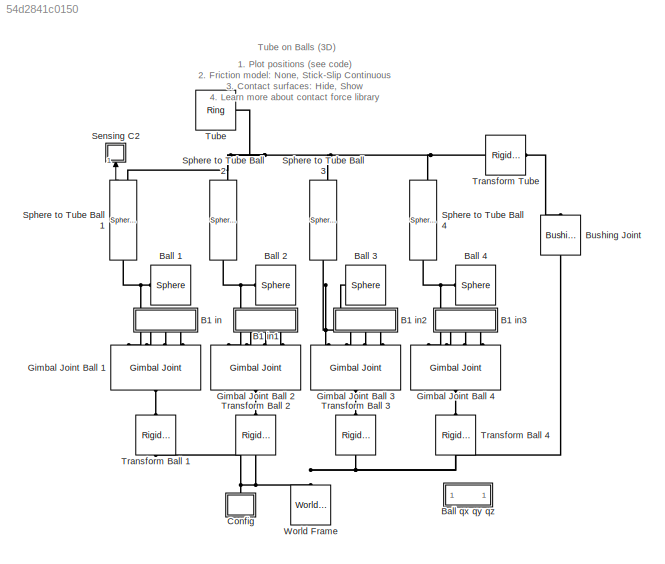
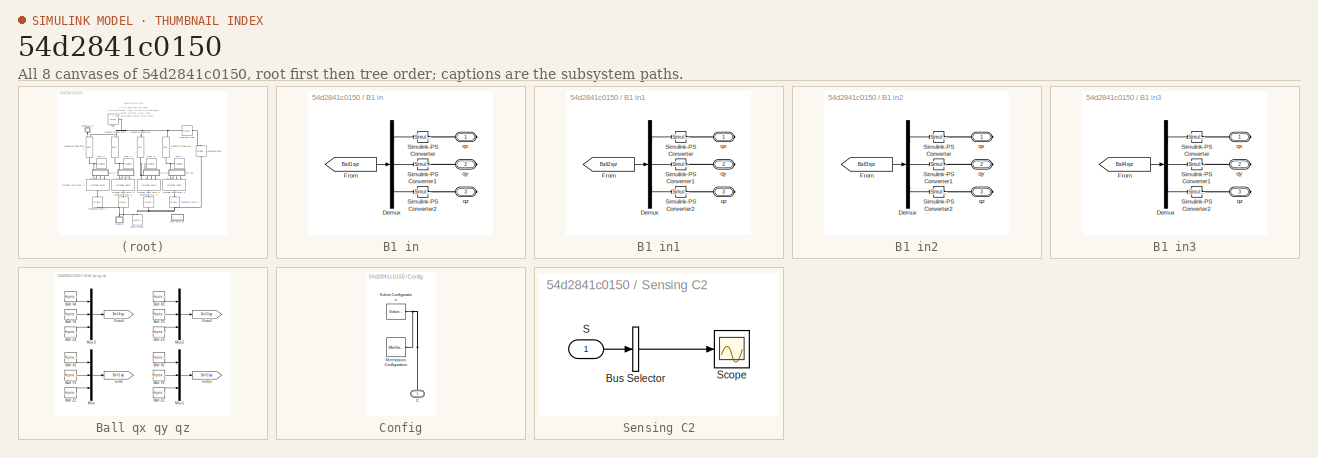
[diagram: thumbnail index - all 8 canvases of the model, root first then tree order]
MODEL slx_54d2841c0150
KIND model
CONFIG AbsTol = 1e-5
CONFIG EnableMultiTasking = on
CONFIG FixedStep = auto
CONFIG MaxStep = 1e-2
CONFIG MinStep = auto
CONFIG RelTol = 1e-4
CONFIG SampleTimeConstraint = Unconstrained
CONFIG Solver = ode23t
CONFIG SolverName = ode23t
CONFIG StartFcn = tic;
CONFIG StartTime = 0.0
CONFIG StopFcn = Elapsed_Sim_Time = toc;\ndisp(['Elapsed Sim Time = ' num2str(Elapsed_Sim_Time)]);\n
CONFIG StopTime = 36
WORKSPACE source: MATLAB code (in-file)
WORKSPACE code: ball.rad = 0.2;
WORKSPACE code: ball.spacing = 0.5;
WORKSPACE code: tube.radius = 0.5;
WORKSPACE code: tube.length = 3;
WORKSPACE code: tube.thickness=0.2*tube.radius;
WORKSPACE code: ballTube.friction.vel_thr = 0.01;
WORKSPACE code: ballTube.friction.mus = 0.7;
WORKSPACE code: ballTube.friction.muk = 0.6;
WORKSPACE code: ballInput.mag = 80;
WORKSPACE code: ballInput.filtconst = 0.4;
WORKSPACE code: ballInput.period = 2;
WORKSPACE code: ballInput.common.x = [0 1 0 -1 0 0 0  0 0];
WORKSPACE code: ballInput.common.y = [0 0 0  0 0 1 0 -1 0];
WORKSPACE code: ballInput.common.z = [0 0 0  0 0 0 0  0 0];
WORKSPACE code: ballInput.b1.x = [ballInput.common.x  0 0 0 0 1 2.5 2.5 0];
WORKSPACE code: ballInput.b1.y = [ballInput.common.y  0 0 0 0 0 0 0 0];
WORKSPACE code: ballInput.b2.x = [ballInput.common.x  0 0 0 0 1 2.5 2.5 0];
WORKSPACE code: ballInput.b2.y = [ballInput.common.y  0 0 0 0 0 0 0 0];
WORKSPACE code: ballInput.b3.x = [ballInput.common.x  0 0 0 0 1 2.5 2.5 0];
WORKSPACE code: ballInput.b3.y = [ballInput.common.y  0 0 0 0 0 0 0 0];
WORKSPACE code: ballInput.b4.x = [ballInput.common.x  0 0 0 0 1 2.5 2.5 0];
WORKSPACE code: ballInput.b4.y = [ballInput.common.y  0 0 0 0 0 0 0 0];
WORKSPACE code: ballInput.b1.z = [ballInput.common.z    1  0  -1 0 0 0 0 0];
WORKSPACE code: ballInput.b2.z = [ballInput.common.z   -1  0   1 0 0 0 0 0];
WORKSPACE code: ballInput.b3.z = [ballInput.common.z   -1  0   1 0 0 0 0 0];
WORKSPACE code: ballInput.b4.z = [ballInput.common.z    1  0  -1 0 0 0 0 0];
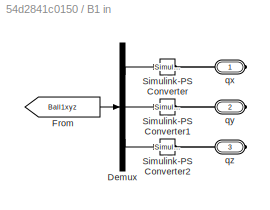
BLOCK [SubSystem] B1 in
  Ports = [0, 0, 0, 0, 0, 0, 3]
  RequestExecContextInheritance = off
BLOCK [Demux] B1 in/Demux
  DisplayOption = bar
  Outputs = 3
  Ports = [1, 3]
BLOCK [From] B1 in/From
  GotoTag = Ball1xyz
  TagVisibility = global
BLOCK [Reference] B1 in/Simulink-PS Converter  REF=nesl_utility/Simulink-PS
Converter
  Ports = [1, 0, 0, 0, 0, 0, 1]
  SourceBlock = nesl_utility/Simulink-PS\nConverter
  SourceProductBaseCode = SS
  SourceProductName = Simscape
  SourceType = Simulink-PS\nConverter
BLOCK [Reference] B1 in/Simulink-PS Converter1  REF=nesl_utility/Simulink-PS
Converter
  Ports = [1, 0, 0, 0, 0, 0, 1]
  SourceBlock = nesl_utility/Simulink-PS\nConverter
  SourceProductBaseCode = SS
  SourceProductName = Simscape
  SourceType = Simulink-PS\nConverter
BLOCK [Reference] B1 in/Simulink-PS Converter2  REF=nesl_utility/Simulink-PS
Converter
  Ports = [1, 0, 0, 0, 0, 0, 1]
  SourceBlock = nesl_utility/Simulink-PS\nConverter
  SourceProductBaseCode = SS
  SourceProductName = Simscape
  SourceType = Simulink-PS\nConverter
BLOCK [PMIOPort] B1 in/qx
  Side = Right
BLOCK [PMIOPort] B1 in/qy
  Port = 2
  Side = Right
BLOCK [PMIOPort] B1 in/qz
  Port = 3
  Side = Right
BLOCK [SubSystem] B1 in1
  Ports = [0, 0, 0, 0, 0, 0, 3]
  RequestExecContextInheritance = off
BLOCK [Demux] B1 in1/Demux
  DisplayOption = bar
  Outputs = 3
  Ports = [1, 3]
BLOCK [From] B1 in1/From
  GotoTag = Ball2xyz
  TagVisibility = global
BLOCK [Reference] B1 in1/Simulink-PS Converter  REF=nesl_utility/Simulink-PS
Converter
  Ports = [1, 0, 0, 0, 0, 0, 1]
  SourceBlock = nesl_utility/Simulink-PS\nConverter
  SourceProductBaseCode = SS
  SourceProductName = Simscape
  SourceType = Simulink-PS\nConverter
BLOCK [Reference] B1 in1/Simulink-PS Converter1  REF=nesl_utility/Simulink-PS
Converter
  Ports = [1, 0, 0, 0, 0, 0, 1]
  SourceBlock = nesl_utility/Simulink-PS\nConverter
  SourceProductBaseCode = SS
  SourceProductName = Simscape
  SourceType = Simulink-PS\nConverter
BLOCK [Reference] B1 in1/Simulink-PS Converter2  REF=nesl_utility/Simulink-PS
Converter
  Ports = [1, 0, 0, 0, 0, 0, 1]
  SourceBlock = nesl_utility/Simulink-PS\nConverter
  SourceProductBaseCode = SS
  SourceProductName = Simscape
  SourceType = Simulink-PS\nConverter
BLOCK [PMIOPort] B1 in1/qx
  Side = Right
BLOCK [PMIOPort] B1 in1/qy
  Port = 2
  Side = Right
BLOCK [PMIOPort] B1 in1/qz
  Port = 3
  Side = Right
BLOCK [SubSystem] B1 in2
  Ports = [0, 0, 0, 0, 0, 0, 3]
  RequestExecContextInheritance = off
BLOCK [Demux] B1 in2/Demux
  DisplayOption = bar
  Outputs = 3
  Ports = [1, 3]
BLOCK [From] B1 in2/From
  GotoTag = Ball3xyz
  TagVisibility = global
BLOCK [Reference] B1 in2/Simulink-PS Converter  REF=nesl_utility/Simulink-PS
Converter
  Ports = [1, 0, 0, 0, 0, 0, 1]
  SourceBlock = nesl_utility/Simulink-PS\nConverter
  SourceProductBaseCode = SS
  SourceProductName = Simscape
  SourceType = Simulink-PS\nConverter
BLOCK [Reference] B1 in2/Simulink-PS Converter1  REF=nesl_utility/Simulink-PS
Converter
  Ports = [1, 0, 0, 0, 0, 0, 1]
  SourceBlock = nesl_utility/Simulink-PS\nConverter
  SourceProductBaseCode = SS
  SourceProductName = Simscape
  SourceType = Simulink-PS\nConverter
BLOCK [Reference] B1 in2/Simulink-PS Converter2  REF=nesl_utility/Simulink-PS
Converter
  Ports = [1, 0, 0, 0, 0, 0, 1]
  SourceBlock = nesl_utility/Simulink-PS\nConverter
  SourceProductBaseCode = SS
  SourceProductName = Simscape
  SourceType = Simulink-PS\nConverter
BLOCK [PMIOPort] B1 in2/qx
  Side = Right
BLOCK [PMIOPort] B1 in2/qy
  Port = 2
  Side = Right
BLOCK [PMIOPort] B1 in2/qz
  Port = 3
  Side = Right
BLOCK [SubSystem] B1 in3
  Ports = [0, 0, 0, 0, 0, 0, 3]
  RequestExecContextInheritance = off
BLOCK [Demux] B1 in3/Demux
  DisplayOption = bar
  Outputs = 3
  Ports = [1, 3]
BLOCK [From] B1 in3/From
  GotoTag = Ball4xyz
  TagVisibility = global
BLOCK [Reference] B1 in3/Simulink-PS Converter  REF=nesl_utility/Simulink-PS
Converter
  Ports = [1, 0, 0, 0, 0, 0, 1]
  SourceBlock = nesl_utility/Simulink-PS\nConverter
  SourceProductBaseCode = SS
  SourceProductName = Simscape
  SourceType = Simulink-PS\nConverter
BLOCK [Reference] B1 in3/Simulink-PS Converter1  REF=nesl_utility/Simulink-PS
Converter
  Ports = [1, 0, 0, 0, 0, 0, 1]
  SourceBlock = nesl_utility/Simulink-PS\nConverter
  SourceProductBaseCode = SS
  SourceProductName = Simscape
  SourceType = Simulink-PS\nConverter
BLOCK [Reference] B1 in3/Simulink-PS Converter2  REF=nesl_utility/Simulink-PS
Converter
  Ports = [1, 0, 0, 0, 0, 0, 1]
  SourceBlock = nesl_utility/Simulink-PS\nConverter
  SourceProductBaseCode = SS
  SourceProductName = Simscape
  SourceType = Simulink-PS\nConverter
BLOCK [PMIOPort] B1 in3/qx
  Side = Right
BLOCK [PMIOPort] B1 in3/qy
  Port = 2
  Side = Right
BLOCK [PMIOPort] B1 in3/qz
  Port = 3
  Side = Right
BLOCK [Reference] Ball 1  REF=Parts_Lib/Sphere
  Ports = [0, 0, 0, 0, 0, 1]
  SourceBlock = Parts_Lib/Sphere
  SourceType = Sphere with Markings
  Tag = CustomStyle
BLOCK [Reference] Ball 2  REF=Parts_Lib/Sphere
  Ports = [0, 0, 0, 0, 0, 1]
  SourceBlock = Parts_Lib/Sphere
  SourceType = Sphere with Markings
  Tag = CustomStyle
BLOCK [Reference] Ball 3  REF=Parts_Lib/Sphere
  Ports = [0, 0, 0, 0, 0, 1]
  SourceBlock = Parts_Lib/Sphere
  SourceType = Sphere with Markings
  Tag = CustomStyle
BLOCK [Reference] Ball 4  REF=Parts_Lib/Sphere
  Ports = [0, 0, 0, 0, 0, 1]
  SourceBlock = Parts_Lib/Sphere
  SourceType = Sphere with Markings
  Tag = CustomStyle
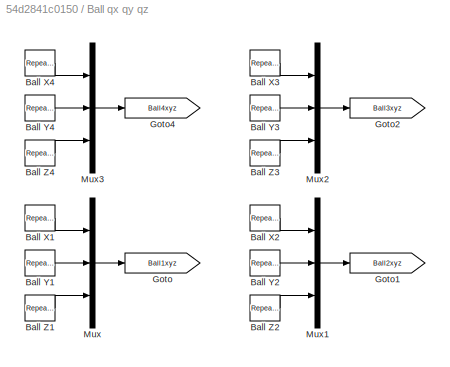
BLOCK [SubSystem] Ball qx qy qz
  Ports = []
  RequestExecContextInheritance = off
BLOCK [Reference] Ball qx qy qz/Ball X1  REF=simulink/Sources/Repeating
Sequence
Stair
  Ports = [0, 1]
  SourceBlock = simulink/Sources/Repeating\nSequence\nStair
  SourceProductBaseCode = SL
  SourceProductName = Simulink
  SourceType = Repeating Sequence Stair
BLOCK [Reference] Ball qx qy qz/Ball X2  REF=simulink/Sources/Repeating
Sequence
Stair
  Ports = [0, 1]
  SourceBlock = simulink/Sources/Repeating\nSequence\nStair
  SourceProductBaseCode = SL
  SourceProductName = Simulink
  SourceType = Repeating Sequence Stair
BLOCK [Reference] Ball qx qy qz/Ball X3  REF=simulink/Sources/Repeating
Sequence
Stair
  Ports = [0, 1]
  SourceBlock = simulink/Sources/Repeating\nSequence\nStair
  SourceProductBaseCode = SL
  SourceProductName = Simulink
  SourceType = Repeating Sequence Stair
BLOCK [Reference] Ball qx qy qz/Ball X4  REF=simulink/Sources/Repeating
Sequence
Stair
  Ports = [0, 1]
  SourceBlock = simulink/Sources/Repeating\nSequence\nStair
  SourceProductBaseCode = SL
  SourceProductName = Simulink
  SourceType = Repeating Sequence Stair
BLOCK [Reference] Ball qx qy qz/Ball Y1  REF=simulink/Sources/Repeating
Sequence
Stair
  Ports = [0, 1]
  SourceBlock = simulink/Sources/Repeating\nSequence\nStair
  SourceProductBaseCode = SL
  SourceProductName = Simulink
  SourceType = Repeating Sequence Stair
BLOCK [Reference] Ball qx qy qz/Ball Y2  REF=simulink/Sources/Repeating
Sequence
Stair
  Ports = [0, 1]
  SourceBlock = simulink/Sources/Repeating\nSequence\nStair
  SourceProductBaseCode = SL
  SourceProductName = Simulink
  SourceType = Repeating Sequence Stair
BLOCK [Reference] Ball qx qy qz/Ball Y3  REF=simulink/Sources/Repeating
Sequence
Stair
  Ports = [0, 1]
  SourceBlock = simulink/Sources/Repeating\nSequence\nStair
  SourceProductBaseCode = SL
  SourceProductName = Simulink
  SourceType = Repeating Sequence Stair
BLOCK [Reference] Ball qx qy qz/Ball Y4  REF=simulink/Sources/Repeating
Sequence
Stair
  Ports = [0, 1]
  SourceBlock = simulink/Sources/Repeating\nSequence\nStair
  SourceProductBaseCode = SL
  SourceProductName = Simulink
  SourceType = Repeating Sequence Stair
BLOCK [Reference] Ball qx qy qz/Ball Z1  REF=simulink/Sources/Repeating
Sequence
Stair
  Ports = [0, 1]
  SourceBlock = simulink/Sources/Repeating\nSequence\nStair
  SourceProductBaseCode = SL
  SourceProductName = Simulink
  SourceType = Repeating Sequence Stair
BLOCK [Reference] Ball qx qy qz/Ball Z2  REF=simulink/Sources/Repeating
Sequence
Stair
  Ports = [0, 1]
  SourceBlock = simulink/Sources/Repeating\nSequence\nStair
  SourceProductBaseCode = SL
  SourceProductName = Simulink
  SourceType = Repeating Sequence Stair
BLOCK [Reference] Ball qx qy qz/Ball Z3  REF=simulink/Sources/Repeating
Sequence
Stair
  Ports = [0, 1]
  SourceBlock = simulink/Sources/Repeating\nSequence\nStair
  SourceProductBaseCode = SL
  SourceProductName = Simulink
  SourceType = Repeating Sequence Stair
BLOCK [Reference] Ball qx qy qz/Ball Z4  REF=simulink/Sources/Repeating
Sequence
Stair
  Ports = [0, 1]
  SourceBlock = simulink/Sources/Repeating\nSequence\nStair
  SourceProductBaseCode = SL
  SourceProductName = Simulink
  SourceType = Repeating Sequence Stair
BLOCK [Goto] Ball qx qy qz/Goto
  GotoTag = Ball1xyz
  TagVisibility = global
BLOCK [Goto] Ball qx qy qz/Goto1
  GotoTag = Ball2xyz
  TagVisibility = global
BLOCK [Goto] Ball qx qy qz/Goto2
  GotoTag = Ball3xyz
  TagVisibility = global
BLOCK [Goto] Ball qx qy qz/Goto4
  GotoTag = Ball4xyz
  TagVisibility = global
BLOCK [Mux] Ball qx qy qz/Mux
  DisplayOption = bar
  Inputs = 3
  Ports = [3, 1]
BLOCK [Mux] Ball qx qy qz/Mux1
  DisplayOption = bar
  Inputs = 3
  Ports = [3, 1]
BLOCK [Mux] Ball qx qy qz/Mux2
  DisplayOption = bar
  Inputs = 3
  Ports = [3, 1]
BLOCK [Mux] Ball qx qy qz/Mux3
  DisplayOption = bar
  Inputs = 3
  Ports = [3, 1]
BLOCK [Reference] Bushing Joint  REF=sm_lib/Joints/Bushing Joint
  Ports = [0, 0, 0, 0, 0, 1, 1]
  SourceBlock = sm_lib/Joints/Bushing Joint
  SourceProductBaseCode = MS
  SourceProductName = Simscape Multibody
  SourceType = Bushing Joint
BLOCK [SubSystem] Config
  Ports = [0, 0, 0, 0, 0, 1]
  RequestExecContextInheritance = off
BLOCK [PMIOPort] Config/C
  Side = Left
BLOCK [Reference] Config/Mechanism Configuration  REF=sm_lib/Utilities/Mechanism
Configuration
  Ports = [0, 0, 0, 0, 0, 0, 1]
  SourceBlock = sm_lib/Utilities/Mechanism\nConfiguration
  SourceProductBaseCode = MS
  SourceProductName = Simscape Multibody
  SourceType = Mechanism\nConfiguration
BLOCK [Reference] Config/Solver Configuration  REF=nesl_utility/Solver
Configuration
  Ports = [0, 0, 0, 0, 0, 0, 1]
  SourceBlock = nesl_utility/Solver\nConfiguration
  SourceProductBaseCode = SS
  SourceProductName = Simscape
  SourceType = Solver\nConfiguration
BLOCK [Reference] Gimbal Joint Ball 1  REF=sm_lib/Joints/Gimbal Joint
  Ports = [0, 0, 0, 0, 0, 4, 1]
  SourceBlock = sm_lib/Joints/Gimbal Joint
  SourceProductBaseCode = MS
  SourceProductName = Simscape Multibody
  SourceType = Gimbal Joint
BLOCK [Reference] Gimbal Joint Ball 2  REF=sm_lib/Joints/Gimbal Joint
  Ports = [0, 0, 0, 0, 0, 4, 1]
  SourceBlock = sm_lib/Joints/Gimbal Joint
  SourceProductBaseCode = MS
  SourceProductName = Simscape Multibody
  SourceType = Gimbal Joint
BLOCK [Reference] Gimbal Joint Ball 3  REF=sm_lib/Joints/Gimbal Joint
  Ports = [0, 0, 0, 0, 0, 4, 1]
  SourceBlock = sm_lib/Joints/Gimbal Joint
  SourceProductBaseCode = MS
  SourceProductName = Simscape Multibody
  SourceType = Gimbal Joint
BLOCK [Reference] Gimbal Joint Ball 4  REF=sm_lib/Joints/Gimbal Joint
  Ports = [0, 0, 0, 0, 0, 4, 1]
  SourceBlock = sm_lib/Joints/Gimbal Joint
  SourceProductBaseCode = MS
  SourceProductName = Simscape Multibody
  SourceType = Gimbal Joint
BLOCK [SubSystem] Sensing C2
  Ports = [1]
  RequestExecContextInheritance = off
BLOCK [BusSelector] Sensing C2/Bus Selector
  OutputAsBus = on
  OutputSignals = Normal Force,Friction Force
  Ports = [1, 1]
BLOCK [Inport] Sensing C2/S
  IconDisplay = Port number
BLOCK [Scope] Sensing C2/Scope
  Floating = off
  NumInputPorts = 1
  Ports = [1]
  ScopeSpecificationString = C++SS(StrPVP('Location','[756, 180, 1153, 689]'),StrPVP('Open','off'),StrPVP('ZoomMode','xonly'),MxPVP('AxesTitles',53,'struct(''axes1'',''%<SignalLabel>'')'),MxPVP('ScopeGraphics',56,'struct(''FigureColor'',''[0.5 0.5 0.5]'',''AxesColor'',''[0 0 0]'',''AxesTickColor'',''[1 1 1]'',''LineColors'',''[1 1 0;1 0 1;0 1 1;1 0 0;0 1 0;0 0 1]'',''LineStyles'',''-|-|-|-|-|-'',''LineWidths'',''[0.5 0.5 0.5 ...<+261ch>
BLOCK [Reference] Sphere to Tube Ball 1  REF=Contact_Forces_Lib/3D/Sphere to Tube Force
  Ports = [0, 1, 0, 0, 0, 1, 1]
  SourceBlock = Contact_Forces_Lib/3D/Sphere to Tube Force
  SourceProductName = Simscape Multibody Contact Forces Library
  SourceType = Sphere to Tube Force
BLOCK [Reference] Sphere to Tube Ball 2  REF=Contact_Forces_Lib/3D/Sphere to Tube Force
  Ports = [0, 1, 0, 0, 0, 1, 1]
  SourceBlock = Contact_Forces_Lib/3D/Sphere to Tube Force
  SourceProductName = Simscape Multibody Contact Forces Library
  SourceType = Sphere to Tube Force
BLOCK [Reference] Sphere to Tube Ball 3  REF=Contact_Forces_Lib/3D/Sphere to Tube Force
  Ports = [0, 1, 0, 0, 0, 1, 1]
  SourceBlock = Contact_Forces_Lib/3D/Sphere to Tube Force
  SourceProductName = Simscape Multibody Contact Forces Library
  SourceType = Sphere to Tube Force
BLOCK [Reference] Sphere to Tube Ball 4  REF=Contact_Forces_Lib/3D/Sphere to Tube Force
  Ports = [0, 1, 0, 0, 0, 1, 1]
  SourceBlock = Contact_Forces_Lib/3D/Sphere to Tube Force
  SourceProductName = Simscape Multibody Contact Forces Library
  SourceType = Sphere to Tube Force
BLOCK [Reference] Transform Ball 1  REF=sm_lib/Frames and
Transforms/Rigid
Transform
  Ports = [0, 0, 0, 0, 0, 1, 1]
  SourceBlock = sm_lib/Frames and\nTransforms/Rigid\nTransform
  SourceProductBaseCode = MS
  SourceProductName = Simscape Multibody
  SourceType = Rigid\nTransform
BLOCK [Reference] Transform Ball 2  REF=sm_lib/Frames and
Transforms/Rigid
Transform
  Ports = [0, 0, 0, 0, 0, 1, 1]
  SourceBlock = sm_lib/Frames and\nTransforms/Rigid\nTransform
  SourceProductBaseCode = MS
  SourceProductName = Simscape Multibody
  SourceType = Rigid\nTransform
BLOCK [Reference] Transform Ball 3  REF=sm_lib/Frames and
Transforms/Rigid
Transform
  Ports = [0, 0, 0, 0, 0, 1, 1]
  SourceBlock = sm_lib/Frames and\nTransforms/Rigid\nTransform
  SourceProductBaseCode = MS
  SourceProductName = Simscape Multibody
  SourceType = Rigid\nTransform
BLOCK [Reference] Transform Ball 4  REF=sm_lib/Frames and
Transforms/Rigid
Transform
  Ports = [0, 0, 0, 0, 0, 1, 1]
  SourceBlock = sm_lib/Frames and\nTransforms/Rigid\nTransform
  SourceProductBaseCode = MS
  SourceProductName = Simscape Multibody
  SourceType = Rigid\nTransform
BLOCK [Reference] Transform Tube  REF=sm_lib/Frames and
Transforms/Rigid
Transform
  Ports = [0, 0, 0, 0, 0, 1, 1]
  SourceBlock = sm_lib/Frames and\nTransforms/Rigid\nTransform
  SourceProductBaseCode = MS
  SourceProductName = Simscape Multibody
  SourceType = Rigid\nTransform
BLOCK [Reference] Tube  REF=Parts_Lib/Ring
  Ports = [0, 0, 0, 0, 0, 1]
  SourceBlock = Parts_Lib/Ring
  SourceType = Solid Cylinder with Markings
  Tag = CustomStyle
BLOCK [Reference] World Frame  REF=sm_lib/Frames and
Transforms/World Frame
  Ports = [0, 0, 0, 0, 0, 0, 1]
  SourceBlock = sm_lib/Frames and\nTransforms/World Frame
  SourceProductBaseCode = MS
  SourceProductName = Simscape Multibody
  SourceType = World Frame
ANNOTATION (root): 1. Plot positions ( see code ) 2. Friction model: None , Stick-Slip Continuous 3. Contact surfaces: Hide , Show 4. Learn more about contact force library
ANNOTATION (root): Tube on Balls (3D)
LINE B1 in/Demux:1 -> B1 in/Simulink-PS Converter:1
LINE B1 in/Demux:2 -> B1 in/Simulink-PS Converter1:1
LINE B1 in/Demux:3 -> B1 in/Simulink-PS Converter2:1
LINE B1 in/From:1 -> B1 in/Demux:1
LINE B1 in1/Demux:1 -> B1 in1/Simulink-PS Converter:1
LINE B1 in1/Demux:2 -> B1 in1/Simulink-PS Converter1:1
LINE B1 in1/Demux:3 -> B1 in1/Simulink-PS Converter2:1
LINE B1 in1/From:1 -> B1 in1/Demux:1
LINE B1 in2/Demux:1 -> B1 in2/Simulink-PS Converter:1
LINE B1 in2/Demux:2 -> B1 in2/Simulink-PS Converter1:1
LINE B1 in2/Demux:3 -> B1 in2/Simulink-PS Converter2:1
LINE B1 in2/From:1 -> B1 in2/Demux:1
LINE B1 in3/Demux:1 -> B1 in3/Simulink-PS Converter:1
LINE B1 in3/Demux:2 -> B1 in3/Simulink-PS Converter1:1
LINE B1 in3/Demux:3 -> B1 in3/Simulink-PS Converter2:1
LINE B1 in3/From:1 -> B1 in3/Demux:1
LINE Ball qx qy qz/Ball X1:1 -> Ball qx qy qz/Mux:1
LINE Ball qx qy qz/Ball X2:1 -> Ball qx qy qz/Mux1:1
LINE Ball qx qy qz/Ball X3:1 -> Ball qx qy qz/Mux2:1
LINE Ball qx qy qz/Ball X4:1 -> Ball qx qy qz/Mux3:1
LINE Ball qx qy qz/Ball Y1:1 -> Ball qx qy qz/Mux:2
LINE Ball qx qy qz/Ball Y2:1 -> Ball qx qy qz/Mux1:2
LINE Ball qx qy qz/Ball Y3:1 -> Ball qx qy qz/Mux2:2
LINE Ball qx qy qz/Ball Y4:1 -> Ball qx qy qz/Mux3:2
LINE Ball qx qy qz/Ball Z1:1 -> Ball qx qy qz/Mux:3
LINE Ball qx qy qz/Ball Z2:1 -> Ball qx qy qz/Mux1:3
LINE Ball qx qy qz/Ball Z3:1 -> Ball qx qy qz/Mux2:3
LINE Ball qx qy qz/Ball Z4:1 -> Ball qx qy qz/Mux3:3
LINE Ball qx qy qz/Mux1:1 -> Ball qx qy qz/Goto1:1
LINE Ball qx qy qz/Mux2:1 -> Ball qx qy qz/Goto2:1
LINE Ball qx qy qz/Mux3:1 -> Ball qx qy qz/Goto4:1
LINE Ball qx qy qz/Mux:1 -> Ball qx qy qz/Goto:1
LINE Sensing C2/Bus Selector:1 -> Sensing C2/Scope:1
LINE Sensing C2/S:1 -> Sensing C2/Bus Selector:1
LINE Sphere to Tube Ball 1:1 -> Sensing C2:1
PLINE B1 in/Simulink-PS Converter1:RConn1 -- B1 in/qy:RConn1
PLINE B1 in/Simulink-PS Converter2:RConn1 -- B1 in/qz:RConn1
PLINE B1 in/Simulink-PS Converter:RConn1 -- B1 in/qx:RConn1
PLINE B1 in1/Simulink-PS Converter1:RConn1 -- B1 in1/qy:RConn1
PLINE B1 in1/Simulink-PS Converter2:RConn1 -- B1 in1/qz:RConn1
PLINE B1 in1/Simulink-PS Converter:RConn1 -- B1 in1/qx:RConn1
PLINE B1 in1:RConn1 -- Gimbal Joint Ball 2:LConn2
PLINE B1 in1:RConn2 -- Gimbal Joint Ball 2:LConn3
PLINE B1 in1:RConn3 -- Gimbal Joint Ball 2:LConn4
PLINE B1 in2/Simulink-PS Converter1:RConn1 -- B1 in2/qy:RConn1
PLINE B1 in2/Simulink-PS Converter2:RConn1 -- B1 in2/qz:RConn1
PLINE B1 in2/Simulink-PS Converter:RConn1 -- B1 in2/qx:RConn1
PLINE B1 in2:RConn1 -- Gimbal Joint Ball 3:LConn2
PLINE B1 in2:RConn2 -- Gimbal Joint Ball 3:LConn3
PLINE B1 in2:RConn3 -- Gimbal Joint Ball 3:LConn4
PLINE B1 in3/Simulink-PS Converter1:RConn1 -- B1 in3/qy:RConn1
PLINE B1 in3/Simulink-PS Converter2:RConn1 -- B1 in3/qz:RConn1
PLINE B1 in3/Simulink-PS Converter:RConn1 -- B1 in3/qx:RConn1
PLINE B1 in3:RConn1 -- Gimbal Joint Ball 4:LConn2
PLINE B1 in3:RConn2 -- Gimbal Joint Ball 4:LConn3
PLINE B1 in3:RConn3 -- Gimbal Joint Ball 4:LConn4
PLINE B1 in:RConn1 -- Gimbal Joint Ball 1:LConn2
PLINE B1 in:RConn2 -- Gimbal Joint Ball 1:LConn3
PLINE B1 in:RConn3 -- Gimbal Joint Ball 1:LConn4
PNET net1: Ball 1:LConn1 -- Gimbal Joint Ball 1:LConn1 -- Sphere to Tube Ball 1:LConn1
PNET net2: Ball 2:LConn1 -- Gimbal Joint Ball 2:LConn1 -- Sphere to Tube Ball 2:LConn1
PNET net3: Ball 3:LConn1 -- Gimbal Joint Ball 3:LConn1 -- Sphere to Tube Ball 3:LConn1
PNET net4: Ball 4:LConn1 -- Gimbal Joint Ball 4:LConn1 -- Sphere to Tube Ball 4:LConn1
PNET net5: Bushing Joint:LConn1 -- Config:LConn1 -- Transform Ball 1:RConn1 -- Transform Ball 2:RConn1 -- Transform Ball 3:RConn1 -- Transform Ball 4:RConn1 -- World Frame:RConn1
PLINE Bushing Joint:RConn1 -- Transform Tube:LConn1
PNET net6: Config/C:RConn1 -- Config/Mechanism Configuration:RConn1 -- Config/Solver Configuration:RConn1
PLINE Gimbal Joint Ball 1:RConn1 -- Transform Ball 1:LConn1
PLINE Gimbal Joint Ball 2:RConn1 -- Transform Ball 2:LConn1
PLINE Gimbal Joint Ball 3:RConn1 -- Transform Ball 3:LConn1
PLINE Gimbal Joint Ball 4:RConn1 -- Transform Ball 4:LConn1
PNET net7: Sphere to Tube Ball 1:RConn1 -- Sphere to Tube Ball 2:RConn1 -- Sphere to Tube Ball 3:RConn1 -- Sphere to Tube Ball 4:RConn1 -- Transform Tube:RConn1 -- Tube:LConn1
note: PNET lines group multi-terminal physical nets as a canonical sorted terminal list (undirected conserving connections); 2-terminal nets keep the pairwise PLINE form
